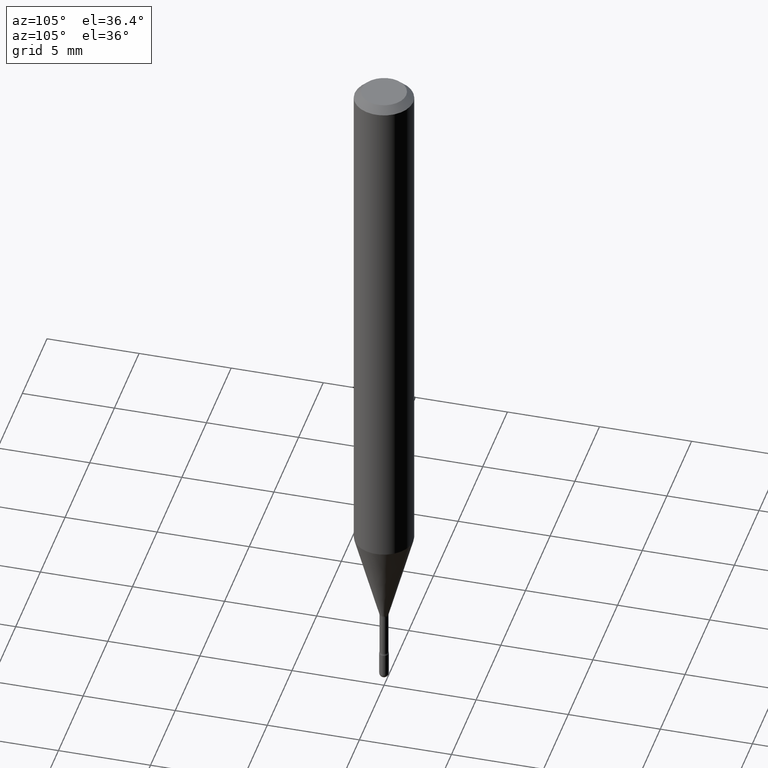
[diagram: clean part render]
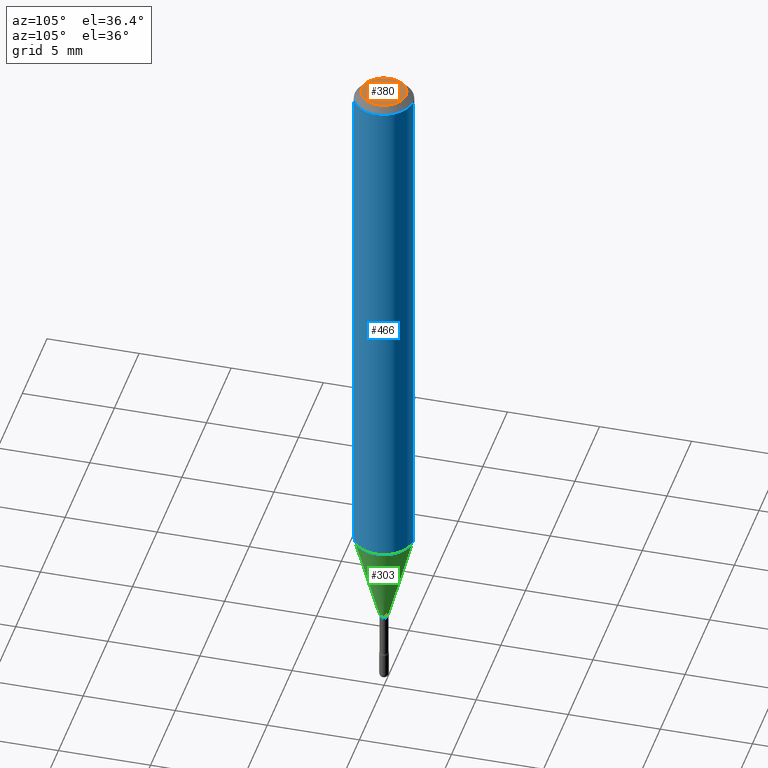
[diagram: same view with three faces highlighted in distinct colors, each labeled with its STEP entity id]
A machine part, auxiliary view with three faces highlighted in distinct colors.
Their STEP definitions:

[orange] entity #380 — the highlighted planar face has unit normal (0, -0, -1).
#1 = CARTESIAN_POINT ( 'NONE',  ( -3.773273898774340269E-16, -0.04749999999999999362, 8.309781393348443277E-17 ) ) ;
#103 = DIRECTION ( 'NONE',  ( -2.445472610723861690E-29, 3.491475890527150421E-15, 1.000000000000000000 ) ) ;
#121 = VERTEX_POINT ( 'NONE', #1 ) ;
#165 = DIRECTION ( 'NONE',  ( -6.982962677686266711E-15, -1.000000000000000000, 3.491475890527150421E-15 ) ) ;
#190 = DIRECTION ( 'NONE',  ( 6.982962677686265922E-15, 1.000000000000000000, -3.491475890527150815E-15 ) ) ;
#205 = AXIS2_PLACEMENT_3D ( 'NONE', #383, #247, #165 ) ;
#247 = DIRECTION ( 'NONE',  ( -2.445472610723861690E-29, 3.491475890527150421E-15, 1.000000000000000000 ) ) ;
#300 = ORIENTED_EDGE ( 'NONE', *, *, #318, .T. ) ;
#307 = AXIS2_PLACEMENT_3D ( 'NONE', #319, #542, #190 ) ;
#318 = EDGE_CURVE ( 'NONE', #121, #562, #494, .T. ) ;
#319 = CARTESIAN_POINT ( 'NONE',  ( 3.316907271900976096E-16, 0.04749999999999999362, 3.181794921230585497E-17 ) ) ;
#336 = CARTESIAN_POINT ( 'NONE',  ( 3.840629472727447874E-16, 0.04749999999999999362, -2.485923956665948360E-16 ) ) ;
#363 = CARTESIAN_POINT ( 'NONE',  ( 2.023580522745210657E-45, -2.889075663720689074E-31, -8.274729086655520778E-17 ) ) ;
#380 = ADVANCED_FACE ( 'NONE', ( #452 ), #507, .F. ) ;
#383 = CARTESIAN_POINT ( 'NONE',  ( 2.023580522745210657E-45, -2.889075663720689074E-31, -8.274729086655520778E-17 ) ) ;
#388 = EDGE_CURVE ( 'NONE', #562, #121, #487, .T. ) ;
#452 = FACE_OUTER_BOUND ( 'NONE', #539, .T. ) ;
#455 = DIRECTION ( 'NONE',  ( -6.982962677686266711E-15, -1.000000000000000000, 3.491475890527150421E-15 ) ) ;
#482 = ORIENTED_EDGE ( 'NONE', *, *, #388, .T. ) ;
#487 = CIRCLE ( 'NONE', #513, 0.04749999999999999362 ) ;
#494 = CIRCLE ( 'NONE', #205, 0.04749999999999999362 ) ;
#507 = PLANE ( 'NONE',  #307 ) ;
#513 = AXIS2_PLACEMENT_3D ( 'NONE', #363, #103, #455 ) ;
#539 = EDGE_LOOP ( 'NONE', ( #482, #300 ) ) ;
#542 = DIRECTION ( 'NONE',  ( 2.445472610723861130E-29, -3.491475890527150815E-15, -1.000000000000000000 ) ) ;
#562 = VERTEX_POINT ( 'NONE', #336 ) ;

[blue] entity #466 — the highlighted cylindrical surface (edge-blend (fillet) strip) has radius 1.5875 mm, axis along (-0, 0, 1).
#3 = ORIENTED_EDGE ( 'NONE', *, *, #20, .T. ) ;
#14 = DIRECTION ( 'NONE',  ( -6.982962677686265922E-15, -1.000000000000000000, 4.370956789862821150E-15 ) ) ;
#20 = EDGE_CURVE ( 'NONE', #350, #94, #62, .T. ) ;
#39 = EDGE_LOOP ( 'NONE', ( #3, #471, #385, #174 ) ) ;
#62 = CIRCLE ( 'NONE', #506, 0.06250000000000000000 ) ;
#79 = CARTESIAN_POINT ( 'NONE',  ( -4.364351673553637142E-16, -0.06250000000000398293, -1.141828102118092936 ) ) ;
#94 = VERTEX_POINT ( 'NONE', #169 ) ;
#107 = VECTOR ( 'NONE', #119, 39.37007874015748143 ) ;
#115 = CARTESIAN_POINT ( 'NONE',  ( 4.440892098500625669E-16, 0.06250000000000000000, 2.598561557332991619E-16 ) ) ;
#117 = DIRECTION ( 'NONE',  ( -2.445472610723861690E-29, 3.491475890527150815E-15, 1.000000000000000000 ) ) ;
#119 = DIRECTION ( 'NONE',  ( -2.445472610723861690E-29, 3.491475890527150815E-15, 1.000000000000000000 ) ) ;
#137 = CARTESIAN_POINT ( 'NONE',  ( 4.440892098500906207E-16, 0.06249999999999993755, -0.01500000000000030129 ) ) ;
#142 = CARTESIAN_POINT ( 'NONE',  ( -1.169113584055446105E-44, 1.669184350826100908E-30, 4.780733988912460139E-16 ) ) ;
#160 = CARTESIAN_POINT ( 'NONE',  ( -4.364351673553912750E-16, -0.06250000000000005551, -0.01499999999999986587 ) ) ;
#169 = CARTESIAN_POINT ( 'NONE',  ( 4.440892098500903249E-16, 0.06249999999999600320, -1.141828102118093602 ) ) ;
#174 = ORIENTED_EDGE ( 'NONE', *, *, #225, .F. ) ;
#188 = CARTESIAN_POINT ( 'NONE',  ( 2.792309349884605750E-29, -3.986665289671695629E-15, -1.141828102118093380 ) ) ;
#209 = DIRECTION ( 'NONE',  ( -6.982962677686265922E-15, -1.000000000000000000, 3.483106191921935554E-15 ) ) ;
#210 = VERTEX_POINT ( 'NONE', #137 ) ;
#225 = EDGE_CURVE ( 'NONE', #350, #310, #269, .T. ) ;
#232 = CARTESIAN_POINT ( 'NONE',  ( 3.668208916085812311E-31, -5.237213835790754425E-17, -0.01500000000000008271 ) ) ;
#268 = EDGE_CURVE ( 'NONE', #94, #210, #556, .T. ) ;
#269 = LINE ( 'NONE', #446, #107 ) ;
#274 = DIRECTION ( 'NONE',  ( -2.445472610723861690E-29, 3.491475890527150421E-15, 1.000000000000000000 ) ) ;
#310 = VERTEX_POINT ( 'NONE', #160 ) ;
#314 = DIRECTION ( 'NONE',  ( -6.982962677686265922E-15, -1.000000000000000000, 3.491475890527150421E-15 ) ) ;
#350 = VERTEX_POINT ( 'NONE', #79 ) ;
#355 = CIRCLE ( 'NONE', #450, 0.06250000000000000000 ) ;
#385 = ORIENTED_EDGE ( 'NONE', *, *, #528, .F. ) ;
#409 = DIRECTION ( 'NONE',  ( -2.445472610723861690E-29, 3.491475890527150421E-15, 1.000000000000000000 ) ) ;
#446 = CARTESIAN_POINT ( 'NONE',  ( -4.364351673553916201E-16, -0.06250000000000000000, 6.962906420491929152E-16 ) ) ;
#450 = AXIS2_PLACEMENT_3D ( 'NONE', #232, #531, #209 ) ;
#454 = FACE_OUTER_BOUND ( 'NONE', #39, .T. ) ;
#466 = ADVANCED_FACE ( 'NONE', ( #454 ), #547, .T. ) ;
#471 = ORIENTED_EDGE ( 'NONE', *, *, #268, .T. ) ;
#506 = AXIS2_PLACEMENT_3D ( 'NONE', #188, #274, #14 ) ;
#527 = VECTOR ( 'NONE', #117, 39.37007874015748143 ) ;
#528 = EDGE_CURVE ( 'NONE', #310, #210, #355, .T. ) ;
#531 = DIRECTION ( 'NONE',  ( -2.445472610723861690E-29, 3.491475890527150421E-15, 1.000000000000000000 ) ) ;
#547 = CYLINDRICAL_SURFACE ( 'NONE', #555, 0.06250000000000000000 ) ;
#555 = AXIS2_PLACEMENT_3D ( 'NONE', #142, #409, #314 ) ;
#556 = LINE ( 'NONE', #115, #527 ) ;

[green] entity #303 — the highlighted conical surface has half-angle 15 deg.
#14 = DIRECTION ( 'NONE',  ( -6.982962677686265922E-15, -1.000000000000000000, 4.370956789862821150E-15 ) ) ;
#20 = EDGE_CURVE ( 'NONE', #350, #94, #62, .T. ) ;
#26 = EDGE_CURVE ( 'NONE', #217, #350, #147, .T. ) ;
#37 = CARTESIAN_POINT ( 'NONE',  ( 2.572559502513361655E-16, 0.009911112605659307129, -1.338092501787273347 ) ) ;
#43 = EDGE_LOOP ( 'NONE', ( #218, #302, #337, #76 ) ) ;
#44 = AXIS2_PLACEMENT_3D ( 'NONE', #331, #564, #468 ) ;
#62 = CIRCLE ( 'NONE', #506, 0.06250000000000000000 ) ;
#63 = EDGE_CURVE ( 'NONE', #217, #258, #114, .T. ) ;
#76 = ORIENTED_EDGE ( 'NONE', *, *, #26, .F. ) ;
#79 = CARTESIAN_POINT ( 'NONE',  ( -4.364351673553637142E-16, -0.06250000000000398293, -1.141828102118092936 ) ) ;
#94 = VERTEX_POINT ( 'NONE', #169 ) ;
#114 = CIRCLE ( 'NONE', #261, 0.009911112605663978739 ) ;
#147 = LINE ( 'NONE', #278, #354 ) ;
#169 = CARTESIAN_POINT ( 'NONE',  ( 4.440892098500903249E-16, 0.06249999999999600320, -1.141828102118093602 ) ) ;
#188 = CARTESIAN_POINT ( 'NONE',  ( 2.792309349884605750E-29, -3.986665289671695629E-15, -1.141828102118093380 ) ) ;
#217 = VERTEX_POINT ( 'NONE', #356 ) ;
#218 = ORIENTED_EDGE ( 'NONE', *, *, #63, .T. ) ;
#258 = VERTEX_POINT ( 'NONE', #37 ) ;
#261 = AXIS2_PLACEMENT_3D ( 'NONE', #298, #386, #524 ) ;
#274 = DIRECTION ( 'NONE',  ( -2.445472610723861690E-29, 3.491475890527150421E-15, 1.000000000000000000 ) ) ;
#278 = CARTESIAN_POINT ( 'NONE',  ( -6.920892941966471525E-17, -0.009911112605668652084, -1.338092501787273347 ) ) ;
#295 = LINE ( 'NONE', #517, #365 ) ;
#298 = CARTESIAN_POINT ( 'NONE',  ( 3.272268563735746629E-29, -4.671917709285422195E-15, -1.338092501787273347 ) ) ;
#302 = ORIENTED_EDGE ( 'NONE', *, *, #330, .T. ) ;
#303 = ADVANCED_FACE ( 'NONE', ( #342 ), #313, .T. ) ;
#313 = CONICAL_SURFACE ( 'NONE', #44, 0.009911112605663978739, 0.2617993877991500740 ) ;
#325 = DIRECTION ( 'NONE',  ( 1.839019923739598738E-15, 0.2588190451025247363, 0.9659258262890673130 ) ) ;
#330 = EDGE_CURVE ( 'NONE', #258, #94, #295, .T. ) ;
#331 = CARTESIAN_POINT ( 'NONE',  ( 3.272268563735746629E-29, -4.671917709285422195E-15, -1.338092501787273347 ) ) ;
#337 = ORIENTED_EDGE ( 'NONE', *, *, #20, .F. ) ;
#342 = FACE_OUTER_BOUND ( 'NONE', #43, .T. ) ;
#350 = VERTEX_POINT ( 'NONE', #79 ) ;
#354 = VECTOR ( 'NONE', #360, 39.37007874015748854 ) ;
#356 = CARTESIAN_POINT ( 'NONE',  ( -6.920892941966471525E-17, -0.009911112605668652084, -1.338092501787273347 ) ) ;
#360 = DIRECTION ( 'NONE',  ( -1.807323732225328562E-15, -0.2588190451025179639, 0.9659258262890690894 ) ) ;
#365 = VECTOR ( 'NONE', #325, 39.37007874015748854 ) ;
#386 = DIRECTION ( 'NONE',  ( -2.445472610723861690E-29, 3.491475890527150421E-15, 1.000000000000000000 ) ) ;
#468 = DIRECTION ( 'NONE',  ( -6.982962677686265922E-15, -1.000000000000000000, 0.000000000000000000 ) ) ;
#506 = AXIS2_PLACEMENT_3D ( 'NONE', #188, #274, #14 ) ;
#517 = CARTESIAN_POINT ( 'NONE',  ( 7.042269065258169786E-17, 0.009911112605659307129, -1.338092501787273347 ) ) ;
#524 = DIRECTION ( 'NONE',  ( -6.982962677686265922E-15, -1.000000000000000000, 0.000000000000000000 ) ) ;
#564 = DIRECTION ( 'NONE',  ( -2.445472610723861690E-29, 3.491475890527150421E-15, 1.000000000000000000 ) ) ;